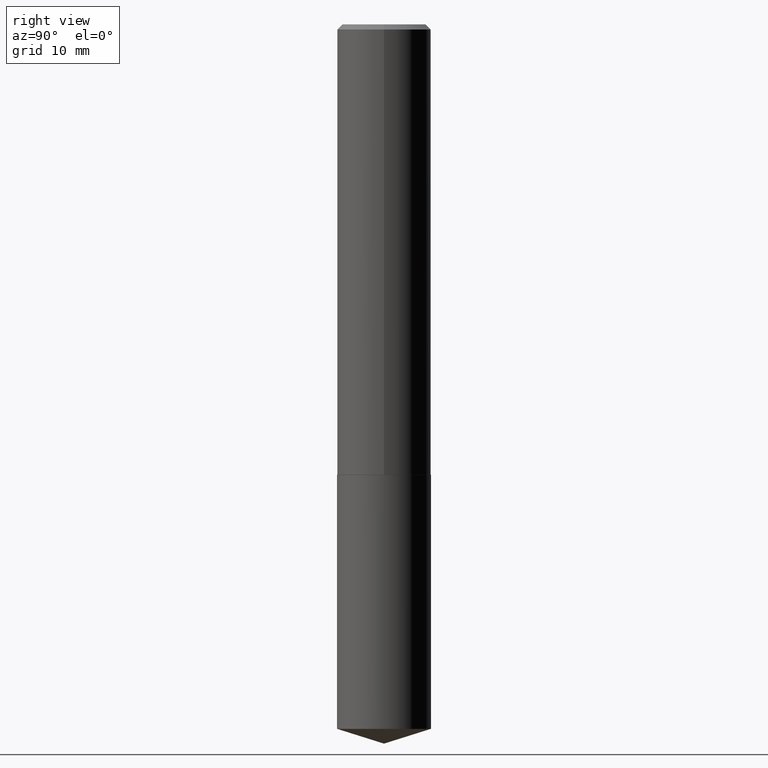
[diagram: clean part render]
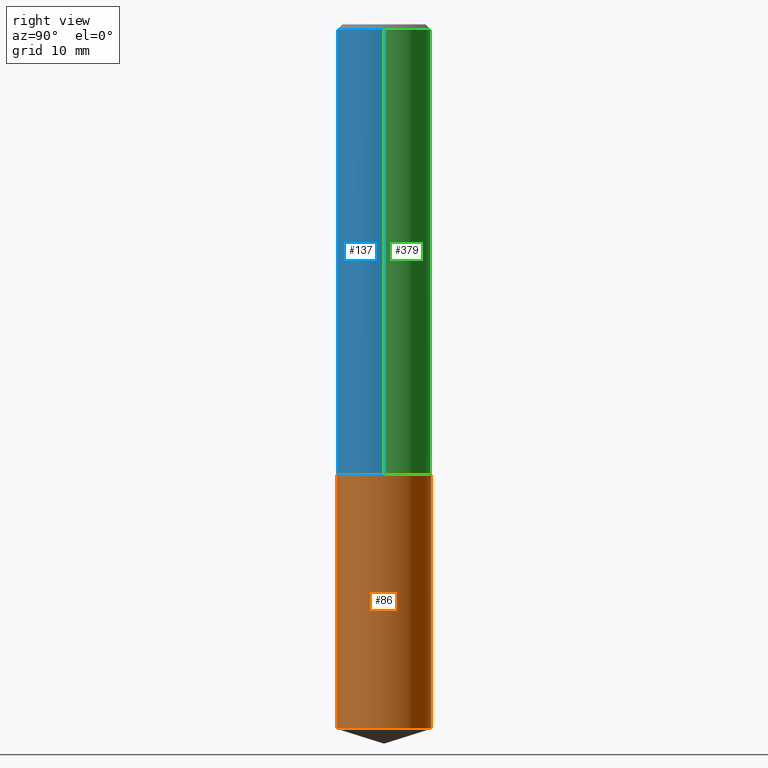
[diagram: same view with three faces highlighted in distinct colors, each labeled with its STEP entity id]
A machine part, right view with three faces highlighted in distinct colors.
Their STEP definitions:

[orange] entity #86 — the highlighted cylindrical surface (partial cylindrical patch) has radius 7.2504 mm, axis along (-0, 0, 1).
#15 = LINE ( 'NONE', #259, #46 ) ;
#34 = AXIS2_PLACEMENT_3D ( 'NONE', #131, #337, #281 ) ;
#37 = VERTEX_POINT ( 'NONE', #187 ) ;
#41 = CIRCLE ( 'NONE', #34, 0.2854499999999999815 ) ;
#42 = DIRECTION ( 'NONE',  ( -2.445146152263225319E-29, 3.491943397623643966E-15, 1.000000000000000000 ) ) ;
#46 = VECTOR ( 'NONE', #340, 39.37007874015748143 ) ;
#51 = CARTESIAN_POINT ( 'NONE',  ( 6.691536294364390280E-29, -9.553740387476499873E-15, -2.736299999999999955 ) ) ;
#59 = ORIENTED_EDGE ( 'NONE', *, *, #246, .F. ) ;
#66 = CARTESIAN_POINT ( 'NONE',  ( 6.691536294364390280E-29, -9.553740387476499873E-15, -2.736299999999999955 ) ) ;
#86 = ADVANCED_FACE ( 'NONE', ( #362 ), #217, .T. ) ;
#102 = CARTESIAN_POINT ( 'NONE',  ( 2.028244239227311162E-15, 0.2854499999999851600, -4.280097960714495997 ) ) ;
#107 = EDGE_CURVE ( 'NONE', #111, #268, #41, .T. ) ;
#108 = CARTESIAN_POINT ( 'NONE',  ( -1.993286696345477508E-15, -0.2854500000000095294, -2.736299999999999066 ) ) ;
#111 = VERTEX_POINT ( 'NONE', #198 ) ;
#131 = CARTESIAN_POINT ( 'NONE',  ( 1.046634793787725127E-28, -1.494459548365832661E-14, -4.280097960714495109 ) ) ;
#133 = CARTESIAN_POINT ( 'NONE',  ( -1.993286696345477508E-15, -0.2854500000000095294, -2.736299999999999066 ) ) ;
#169 = DIRECTION ( 'NONE',  ( -2.445146152263225319E-29, 3.491943397623643572E-15, 1.000000000000000000 ) ) ;
#172 = EDGE_LOOP ( 'NONE', ( #346, #364, #299, #59 ) ) ;
#185 = DIRECTION ( 'NONE',  ( -2.445146152263225319E-29, 3.491943397623643572E-15, 1.000000000000000000 ) ) ;
#187 = CARTESIAN_POINT ( 'NONE',  ( 2.028244239227311162E-15, 0.2854499999999904891, -2.736300000000001287 ) ) ;
#197 = AXIS2_PLACEMENT_3D ( 'NONE', #51, #169, #349 ) ;
#198 = CARTESIAN_POINT ( 'NONE',  ( -1.993286696345440432E-15, -0.2854500000000150250, -4.280097960714494221 ) ) ;
#217 = CYLINDRICAL_SURFACE ( 'NONE', #322, 0.2854499999999999815 ) ;
#218 = VECTOR ( 'NONE', #42, 39.37007874015748143 ) ;
#246 = EDGE_CURVE ( 'NONE', #111, #353, #373, .T. ) ;
#259 = CARTESIAN_POINT ( 'NONE',  ( 2.028244239227272508E-15, 0.2854499999999904336, -2.736300000000001287 ) ) ;
#268 = VERTEX_POINT ( 'NONE', #102 ) ;
#280 = EDGE_CURVE ( 'NONE', #268, #37, #15, .T. ) ;
#281 = DIRECTION ( 'NONE',  ( -6.982962677686265922E-15, -1.000000000000000000, 3.828128209723963046E-15 ) ) ;
#283 = CIRCLE ( 'NONE', #197, 0.2854499999999999815 ) ;
#299 = ORIENTED_EDGE ( 'NONE', *, *, #356, .F. ) ;
#302 = DIRECTION ( 'NONE',  ( -6.982962677686265922E-15, -1.000000000000000000, 3.828128209723963046E-15 ) ) ;
#322 = AXIS2_PLACEMENT_3D ( 'NONE', #66, #185, #302 ) ;
#337 = DIRECTION ( 'NONE',  ( -2.445146152263225319E-29, 3.491943397623643572E-15, 1.000000000000000000 ) ) ;
#340 = DIRECTION ( 'NONE',  ( -2.445146152263225319E-29, 3.491943397623643966E-15, 1.000000000000000000 ) ) ;
#346 = ORIENTED_EDGE ( 'NONE', *, *, #107, .T. ) ;
#349 = DIRECTION ( 'NONE',  ( -6.982962677686265922E-15, -1.000000000000000000, 3.828128209723963046E-15 ) ) ;
#353 = VERTEX_POINT ( 'NONE', #108 ) ;
#356 = EDGE_CURVE ( 'NONE', #353, #37, #283, .T. ) ;
#362 = FACE_OUTER_BOUND ( 'NONE', #172, .T. ) ;
#364 = ORIENTED_EDGE ( 'NONE', *, *, #280, .T. ) ;
#373 = LINE ( 'NONE', #133, #218 ) ;

[blue] entity #137 — the highlighted cylindrical surface (partial cylindrical patch) has radius 7.2504 mm, axis along (-0, 0, 1).
#11 = CYLINDRICAL_SURFACE ( 'NONE', #335, 0.2854500000000001481 ) ;
#12 = AXIS2_PLACEMENT_3D ( 'NONE', #227, #257, #284 ) ;
#20 = ORIENTED_EDGE ( 'NONE', *, *, #182, .T. ) ;
#45 = CARTESIAN_POINT ( 'NONE',  ( 0.2854500000000001481, -1.993286696345545744E-15, 1.391904660650950803E-29 ) ) ;
#69 = VERTEX_POINT ( 'NONE', #244 ) ;
#76 = CARTESIAN_POINT ( 'NONE',  ( -0.2854500000000003146, -7.523750407579868575E-15, -2.735799999999999788 ) ) ;
#77 = DIRECTION ( 'NONE',  ( 1.000000000000000000, -6.982962677686265922E-15, 4.876176775795936353E-29 ) ) ;
#79 = CARTESIAN_POINT ( 'NONE',  ( -0.2854500000000001481, 2.028244239227207033E-15, -1.404110021513263625E-29 ) ) ;
#99 = EDGE_CURVE ( 'NONE', #142, #243, #376, .T. ) ;
#104 = DIRECTION ( 'NONE',  ( -2.445468806185136877E-29, 3.491481338843145188E-15, 1.000000000000000000 ) ) ;
#105 = CARTESIAN_POINT ( 'NONE',  ( 0.2854499999999999815, -2.102395488184393662E-15, -0.03125000000000020817 ) ) ;
#119 = ORIENTED_EDGE ( 'NONE', *, *, #130, .T. ) ;
#126 = DIRECTION ( 'NONE',  ( -2.445468806185136877E-29, 3.491481338843145188E-15, 1.000000000000000000 ) ) ;
#127 = VECTOR ( 'NONE', #104, 39.37007874015748143 ) ;
#130 = EDGE_CURVE ( 'NONE', #69, #366, #307, .T. ) ;
#137 = ADVANCED_FACE ( 'NONE', ( #230 ), #11, .T. ) ;
#142 = VERTEX_POINT ( 'NONE', #76 ) ;
#149 = AXIS2_PLACEMENT_3D ( 'NONE', #253, #194, #306 ) ;
#168 = EDGE_CURVE ( 'NONE', #243, #366, #287, .T. ) ;
#182 = EDGE_CURVE ( 'NONE', #142, #69, #316, .T. ) ;
#194 = DIRECTION ( 'NONE',  ( -2.445468806185136597E-29, 3.491481338843145583E-15, 1.000000000000000000 ) ) ;
#227 = CARTESIAN_POINT ( 'NONE',  ( 7.642090019328602662E-31, -1.091087918388490267E-16, -0.03125000000000020817 ) ) ;
#230 = FACE_OUTER_BOUND ( 'NONE', #234, .T. ) ;
#234 = EDGE_LOOP ( 'NONE', ( #250, #20, #119, #300 ) ) ;
#243 = VERTEX_POINT ( 'NONE', #286 ) ;
#244 = CARTESIAN_POINT ( 'NONE',  ( 0.2854500000000003146, -1.154528134315262530E-14, -2.735799999999999788 ) ) ;
#250 = ORIENTED_EDGE ( 'NONE', *, *, #99, .F. ) ;
#253 = CARTESIAN_POINT ( 'NONE',  ( 6.690313559961295236E-29, -9.551994646807077580E-15, -2.735799999999999788 ) ) ;
#257 = DIRECTION ( 'NONE',  ( -2.445468806185136597E-29, 3.491481338843145583E-15, 1.000000000000000000 ) ) ;
#282 = VECTOR ( 'NONE', #126, 39.37007874015748143 ) ;
#284 = DIRECTION ( 'NONE',  ( 1.000000000000000000, -6.982962677686265922E-15, 0.000000000000000000 ) ) ;
#286 = CARTESIAN_POINT ( 'NONE',  ( -0.2854499999999999815, -2.802307480095755519E-15, -0.03125000000000020817 ) ) ;
#287 = CIRCLE ( 'NONE', #12, 0.2854499999999999815 ) ;
#300 = ORIENTED_EDGE ( 'NONE', *, *, #168, .F. ) ;
#306 = DIRECTION ( 'NONE',  ( 1.000000000000000000, -6.982962677686267499E-15, 0.000000000000000000 ) ) ;
#307 = LINE ( 'NONE', #45, #127 ) ;
#308 = CARTESIAN_POINT ( 'NONE',  ( 0.000000000000000000, 0.000000000000000000, 0.000000000000000000 ) ) ;
#316 = CIRCLE ( 'NONE', #149, 0.2854500000000003146 ) ;
#335 = AXIS2_PLACEMENT_3D ( 'NONE', #308, #370, #77 ) ;
#366 = VERTEX_POINT ( 'NONE', #105 ) ;
#370 = DIRECTION ( 'NONE',  ( -2.445468806185136597E-29, 3.491481338843145583E-15, 1.000000000000000000 ) ) ;
#376 = LINE ( 'NONE', #79, #282 ) ;

[green] entity #379 — the highlighted cylindrical surface (partial cylindrical patch) has radius 7.2504 mm, axis along (-0, 0, 1).
#7 = AXIS2_PLACEMENT_3D ( 'NONE', #381, #378, #297 ) ;
#21 = CARTESIAN_POINT ( 'NONE',  ( 0.000000000000000000, 0.000000000000000000, 0.000000000000000000 ) ) ;
#26 = AXIS2_PLACEMENT_3D ( 'NONE', #256, #226, #166 ) ;
#45 = CARTESIAN_POINT ( 'NONE',  ( 0.2854500000000001481, -1.993286696345545744E-15, 1.391904660650950803E-29 ) ) ;
#69 = VERTEX_POINT ( 'NONE', #244 ) ;
#76 = CARTESIAN_POINT ( 'NONE',  ( -0.2854500000000003146, -7.523750407579868575E-15, -2.735799999999999788 ) ) ;
#78 = CIRCLE ( 'NONE', #7, 0.2854500000000003146 ) ;
#79 = CARTESIAN_POINT ( 'NONE',  ( -0.2854500000000001481, 2.028244239227207033E-15, -1.404110021513263625E-29 ) ) ;
#99 = EDGE_CURVE ( 'NONE', #142, #243, #376, .T. ) ;
#104 = DIRECTION ( 'NONE',  ( -2.445468806185136877E-29, 3.491481338843145188E-15, 1.000000000000000000 ) ) ;
#105 = CARTESIAN_POINT ( 'NONE',  ( 0.2854499999999999815, -2.102395488184393662E-15, -0.03125000000000020817 ) ) ;
#126 = DIRECTION ( 'NONE',  ( -2.445468806185136877E-29, 3.491481338843145188E-15, 1.000000000000000000 ) ) ;
#127 = VECTOR ( 'NONE', #104, 39.37007874015748143 ) ;
#130 = EDGE_CURVE ( 'NONE', #69, #366, #307, .T. ) ;
#142 = VERTEX_POINT ( 'NONE', #76 ) ;
#148 = ORIENTED_EDGE ( 'NONE', *, *, #130, .F. ) ;
#154 = ORIENTED_EDGE ( 'NONE', *, *, #231, .F. ) ;
#166 = DIRECTION ( 'NONE',  ( 1.000000000000000000, -6.982962677686265922E-15, 0.000000000000000000 ) ) ;
#226 = DIRECTION ( 'NONE',  ( -2.445468806185136597E-29, 3.491481338843145583E-15, 1.000000000000000000 ) ) ;
#231 = EDGE_CURVE ( 'NONE', #366, #243, #358, .T. ) ;
#232 = DIRECTION ( 'NONE',  ( 1.000000000000000000, -6.982962677686265922E-15, 4.876176775795936353E-29 ) ) ;
#243 = VERTEX_POINT ( 'NONE', #286 ) ;
#244 = CARTESIAN_POINT ( 'NONE',  ( 0.2854500000000003146, -1.154528134315262530E-14, -2.735799999999999788 ) ) ;
#256 = CARTESIAN_POINT ( 'NONE',  ( 7.642090019328602662E-31, -1.091087918388490267E-16, -0.03125000000000020817 ) ) ;
#270 = ORIENTED_EDGE ( 'NONE', *, *, #352, .T. ) ;
#282 = VECTOR ( 'NONE', #126, 39.37007874015748143 ) ;
#286 = CARTESIAN_POINT ( 'NONE',  ( -0.2854499999999999815, -2.802307480095755519E-15, -0.03125000000000020817 ) ) ;
#295 = CYLINDRICAL_SURFACE ( 'NONE', #348, 0.2854500000000001481 ) ;
#297 = DIRECTION ( 'NONE',  ( 1.000000000000000000, -6.982962677686267499E-15, 0.000000000000000000 ) ) ;
#307 = LINE ( 'NONE', #45, #127 ) ;
#324 = EDGE_LOOP ( 'NONE', ( #270, #385, #154, #148 ) ) ;
#344 = FACE_OUTER_BOUND ( 'NONE', #324, .T. ) ;
#348 = AXIS2_PLACEMENT_3D ( 'NONE', #21, #351, #232 ) ;
#351 = DIRECTION ( 'NONE',  ( -2.445468806185136597E-29, 3.491481338843145583E-15, 1.000000000000000000 ) ) ;
#352 = EDGE_CURVE ( 'NONE', #69, #142, #78, .T. ) ;
#358 = CIRCLE ( 'NONE', #26, 0.2854499999999999815 ) ;
#366 = VERTEX_POINT ( 'NONE', #105 ) ;
#376 = LINE ( 'NONE', #79, #282 ) ;
#378 = DIRECTION ( 'NONE',  ( -2.445468806185136597E-29, 3.491481338843145583E-15, 1.000000000000000000 ) ) ;
#379 = ADVANCED_FACE ( 'NONE', ( #344 ), #295, .T. ) ;
#381 = CARTESIAN_POINT ( 'NONE',  ( 6.690313559961295236E-29, -9.551994646807077580E-15, -2.735799999999999788 ) ) ;
#385 = ORIENTED_EDGE ( 'NONE', *, *, #99, .T. ) ;